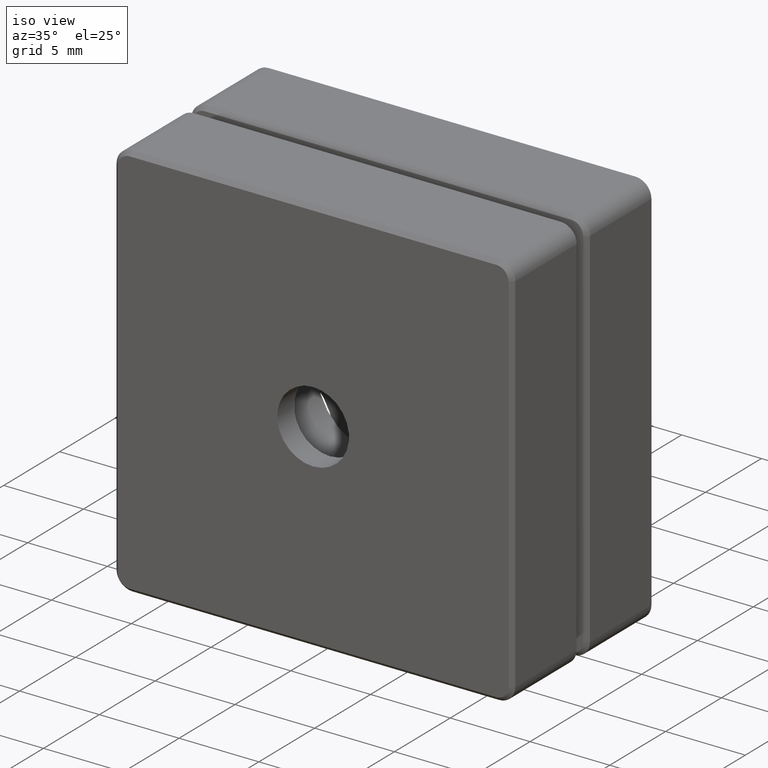
[diagram: clean part render]
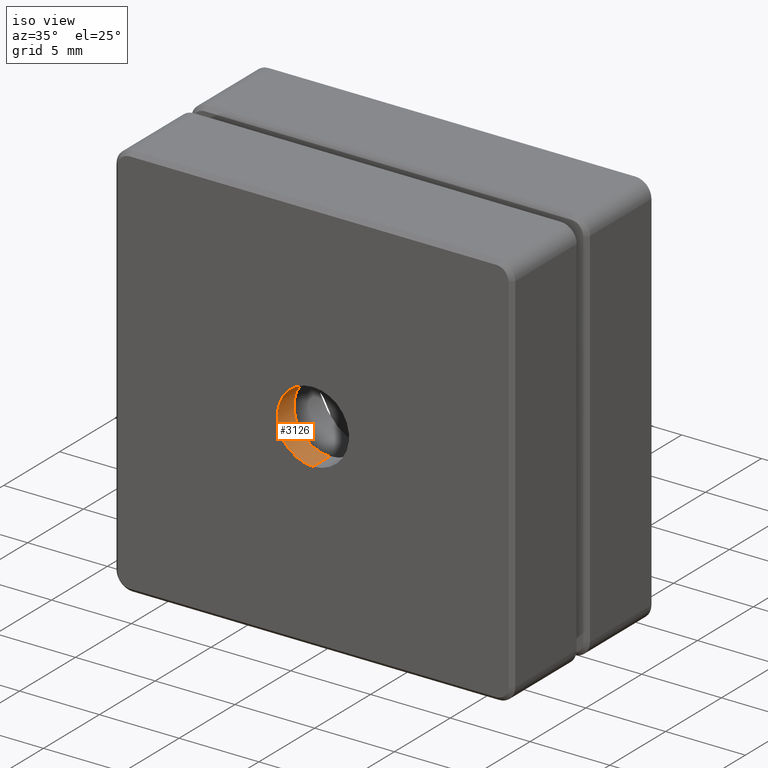
[diagram: same view with one face highlighted and labeled with its STEP entity id]
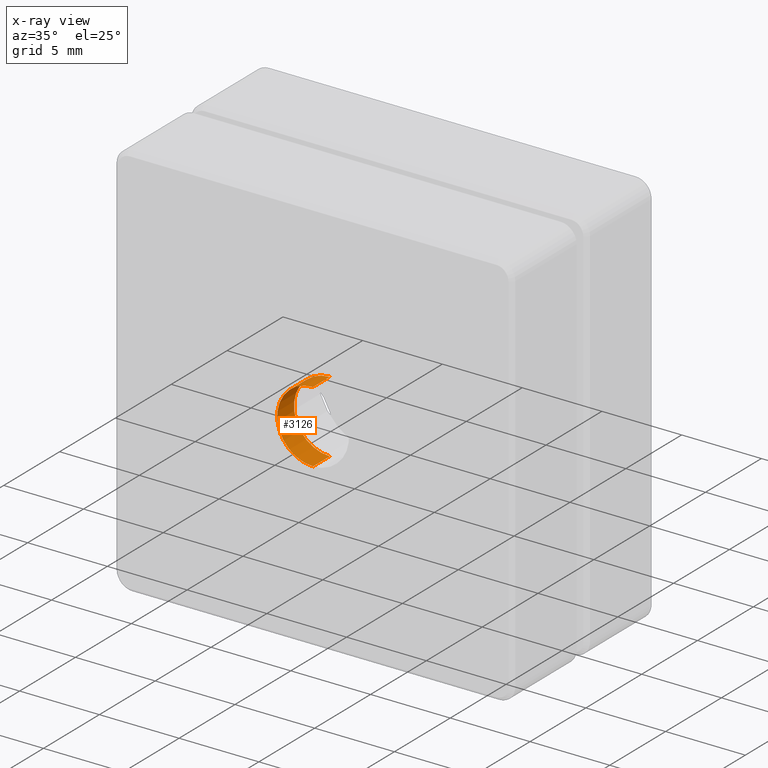
[diagram: x-ray of the same camera — body ghosted, the highlighted face saturated]
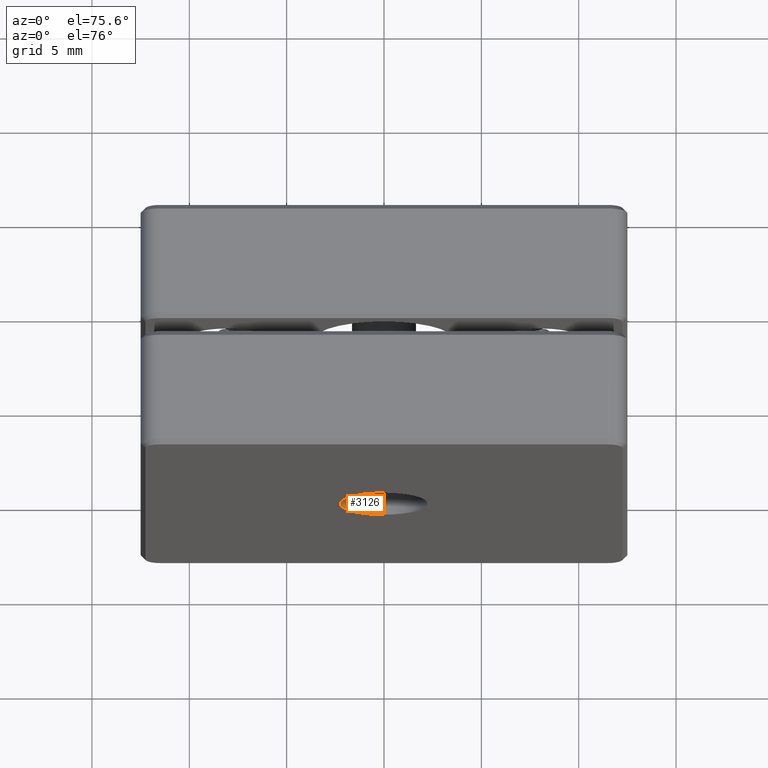
[diagram: same view with one face highlighted and labeled with its STEP entity id]
A machine part, iso view. The second image highlights one B-rep face of the part: STEP entity #3126.
The next image is the same camera in x-ray: the body ghosted, the highlighted face saturated — about 0% of this face is hidden behind the body in this view.
A second angle (auxiliary view) of the same face is appended — the face is thin or edge-on in the first view.
In plain terms, the highlighted cylindrical surface (partial cylindrical patch) has radius 2.25 mm, axis along (-0, 1, -0).
Its self-contained STEP definition (entity closure, byte-faithful):
#173 = AXIS2_PLACEMENT_3D ( 'NONE', #2633, #1321, #2388 ) ;
#200 = VECTOR ( 'NONE', #1500, 1000.000000000000000 ) ;
#289 = VERTEX_POINT ( 'NONE', #431 ) ;
#357 = CARTESIAN_POINT ( 'NONE',  ( 2.755455298081544285E-16, -2.999999999999999112, -2.250000000000000000 ) ) ;
#431 = CARTESIAN_POINT ( 'NONE',  ( 2.755455298081543792E-16, -1.499999999999999556, -2.249999999999999556 ) ) ;
#782 = VERTEX_POINT ( 'NONE', #1963 ) ;
#1200 = AXIS2_PLACEMENT_3D ( 'NONE', #1934, #2195, #2816 ) ;
#1271 = CARTESIAN_POINT ( 'NONE',  ( 0.0000000000000000000, -1.499999999999999556, 0.0000000000000000000 ) ) ;
#1290 = VECTOR ( 'NONE', #3353, 1000.000000000000000 ) ;
#1321 = DIRECTION ( 'NONE',  ( -0.0000000000000000000, 1.000000000000000000, -0.0000000000000000000 ) ) ;
#1399 = VERTEX_POINT ( 'NONE', #1840 ) ;
#1470 = CARTESIAN_POINT ( 'NONE',  ( 2.755455298081543792E-16, 3.000000000000000000, -2.249999999999999556 ) ) ;
#1500 = DIRECTION ( 'NONE',  ( -0.0000000000000000000, 1.000000000000000000, -0.0000000000000000000 ) ) ;
#1525 = ORIENTED_EDGE ( 'NONE', *, *, #3247, .F. ) ;
#1669 = CYLINDRICAL_SURFACE ( 'NONE', #173, 2.249999999999999556 ) ;
#1792 = LINE ( 'NONE', #2803, #200 ) ;
#1826 = CIRCLE ( 'NONE', #1200, 2.250000000000000000 ) ;
#1840 = CARTESIAN_POINT ( 'NONE',  ( 0.0000000000000000000, -2.999999999999999112, 2.250000000000000000 ) ) ;
#1926 = EDGE_CURVE ( 'NONE', #289, #782, #3468, .T. ) ;
#1934 = CARTESIAN_POINT ( 'NONE',  ( 0.0000000000000000000, -2.999999999999999112, 0.0000000000000000000 ) ) ;
#1963 = CARTESIAN_POINT ( 'NONE',  ( 0.0000000000000000000, -1.499999999999999556, 2.249999999999999556 ) ) ;
#2177 = EDGE_LOOP ( 'NONE', ( #1525, #2808, #2690, #2349 ) ) ;
#2195 = DIRECTION ( 'NONE',  ( -0.0000000000000000000, 1.000000000000000000, -0.0000000000000000000 ) ) ;
#2338 = DIRECTION ( 'NONE',  ( -0.0000000000000000000, 1.000000000000000000, -0.0000000000000000000 ) ) ;
#2349 = ORIENTED_EDGE ( 'NONE', *, *, #2886, .F. ) ;
#2388 = DIRECTION ( 'NONE',  ( 0.0000000000000000000, 0.0000000000000000000, 1.000000000000000000 ) ) ;
#2527 = FACE_OUTER_BOUND ( 'NONE', #2177, .T. ) ;
#2633 = CARTESIAN_POINT ( 'NONE',  ( 0.0000000000000000000, 3.000000000000000000, 0.0000000000000000000 ) ) ;
#2690 = ORIENTED_EDGE ( 'NONE', *, *, #1926, .T. ) ;
#2736 = VERTEX_POINT ( 'NONE', #357 ) ;
#2768 = AXIS2_PLACEMENT_3D ( 'NONE', #1271, #2338, #3425 ) ;
#2803 = CARTESIAN_POINT ( 'NONE',  ( 0.0000000000000000000, 3.000000000000000000, 2.249999999999999556 ) ) ;
#2808 = ORIENTED_EDGE ( 'NONE', *, *, #3330, .T. ) ;
#2816 = DIRECTION ( 'NONE',  ( 0.0000000000000000000, 0.0000000000000000000, 1.000000000000000000 ) ) ;
#2886 = EDGE_CURVE ( 'NONE', #1399, #782, #1792, .T. ) ;
#3126 = ADVANCED_FACE ( 'NONE', ( #2527 ), #1669, .F. ) ;
#3247 = EDGE_CURVE ( 'NONE', #2736, #1399, #1826, .T. ) ;
#3284 = LINE ( 'NONE', #1470, #1290 ) ;
#3330 = EDGE_CURVE ( 'NONE', #2736, #289, #3284, .T. ) ;
#3353 = DIRECTION ( 'NONE',  ( -0.0000000000000000000, 1.000000000000000000, -0.0000000000000000000 ) ) ;
#3425 = DIRECTION ( 'NONE',  ( 0.0000000000000000000, 0.0000000000000000000, 1.000000000000000000 ) ) ;
#3468 = CIRCLE ( 'NONE', #2768, 2.249999999999999556 ) ;